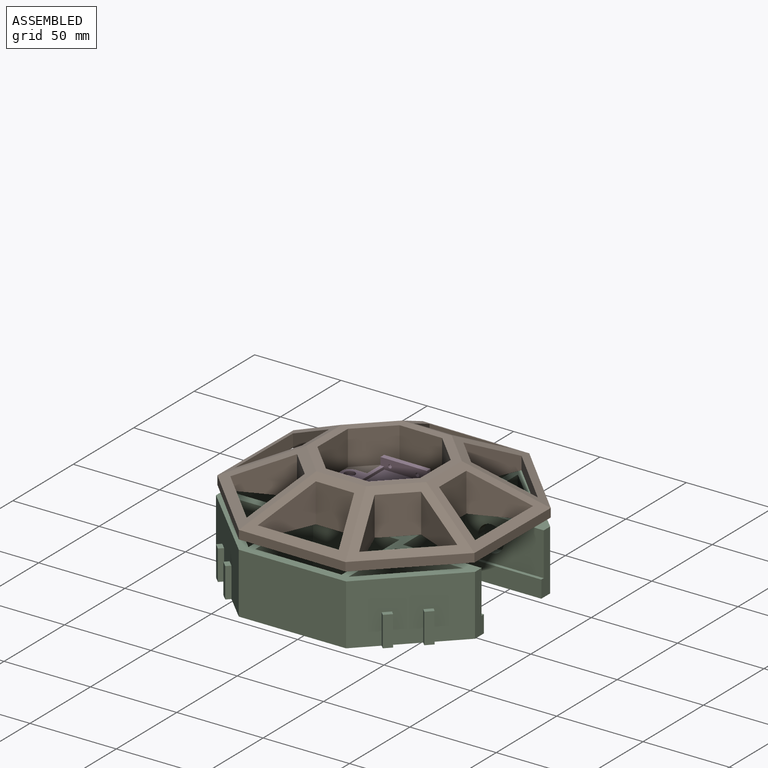
[diagram: assembled view]
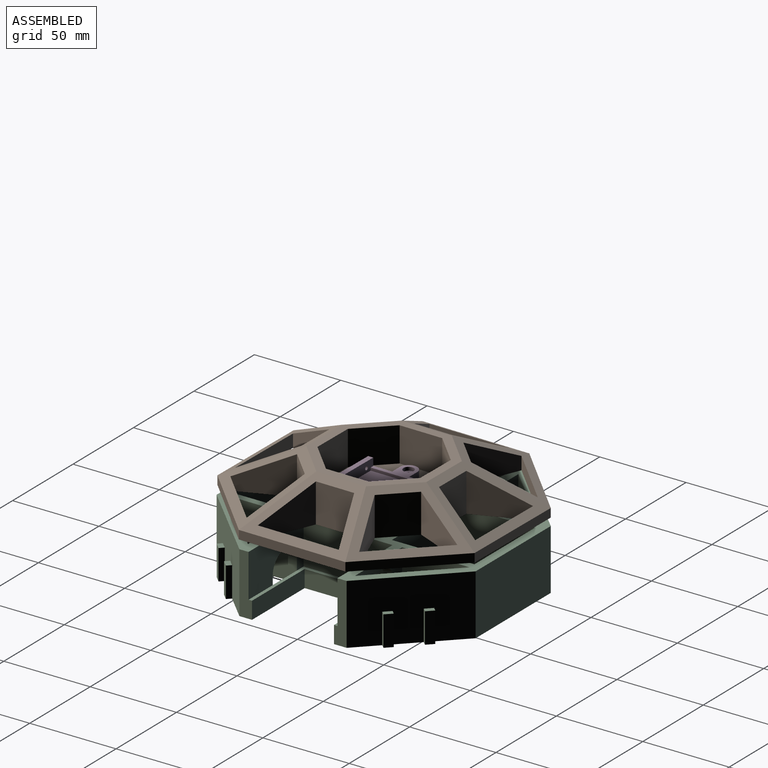
[diagram: assembled view, second angle]
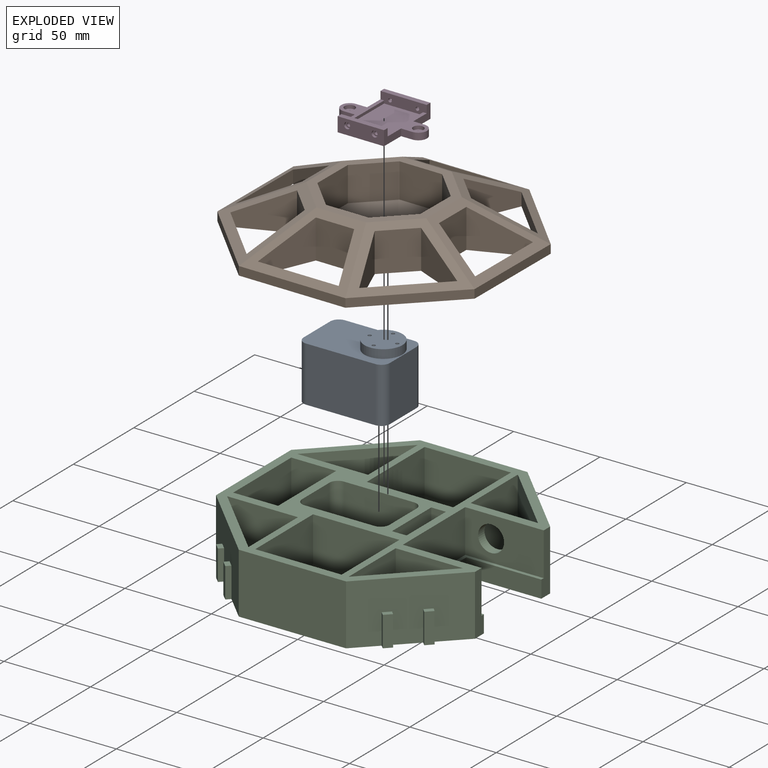
[diagram: exploded view]
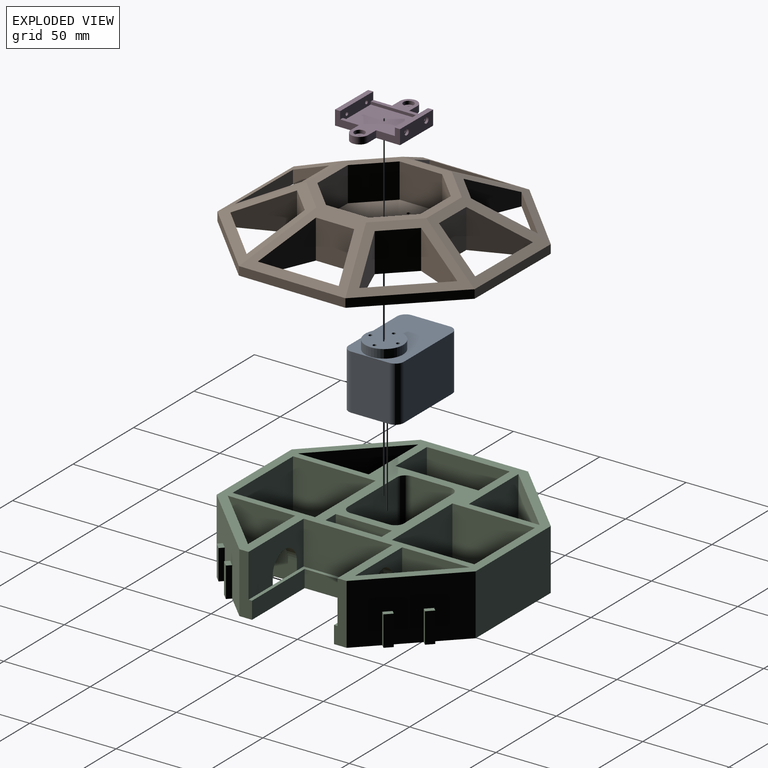
[diagram: exploded view, second angle]
ASSEMBLY  parts=4 mates=6
PART A: 20 faces, bbox 50x32x37 mm
  f0: plane 32x22mm, normal (1,0,0), area 704mm2, adj f4,f5,f6,f9
  f1: plane 40x32mm, normal (0,1,0), area 1280mm2, adj f4,f5,f6,f7
  f2: plane 32x22mm, normal (-1,0,0), area 704mm2, adj f4,f5,f7,f8
  f3: plane 40x32mm, normal (0,-1,0), area 1280mm2, adj f4,f5,f8,f9
  f4: plane 50x32mm, normal (0,0,1), area 1198.4mm2, adj f0,f1,f2,f3,f6,f7,f8,f9
  f5: plane 50x32mm, normal (0,0,-1), area 1578.5mm2, adj f0,f1,f2,f3,f6,f7,f8,f9
  f6: cylinder r=5mm len=32mm, axis (0,0,-1), area 251.3mm2, adj f0,f1,f4,f5
  f7: cylinder r=5mm len=32mm, axis (0,0,1), area 251.3mm2, adj f1,f2,f4,f5
  f8: cylinder r=5mm len=32mm, axis (0,0,-1), area 251.3mm2, adj f2,f3,f4,f5
  f9: cylinder r=5mm len=32mm, axis (0,0,1), area 251.3mm2, adj f0,f3,f4,f5
  f10: cylinder r=11mm len=22mm, axis (0,0,-1), area 345.6mm2, adj f4,f11
  f11: plane 22x22mm, normal (0,0,1), area 367.6mm2, adj f10,f12,f14,f16,f18
  f12: cylinder r=1mm len=5mm, axis (0,0,1), area 31.4mm2, adj f11,f13
  f13: plane 2x2mm, normal (0,0,1), area 3.1mm2, adj f12
  f14: cylinder r=1mm len=5mm, axis (0,0,1), area 31.4mm2, adj f11,f15
  f15: plane 2x2mm, normal (0,0,1), area 3.1mm2, adj f14
  f16: cylinder r=1mm len=5mm, axis (0,0,1), area 31.4mm2, adj f11,f17
  f17: plane 2x2mm, normal (0,0,1), area 3.1mm2, adj f16
  f18: cylinder r=1mm len=5mm, axis (0,0,1), area 31.4mm2, adj f11,f19
  f19: plane 2x2mm, normal (0,0,1), area 3.1mm2, adj f18
PART B: 74 faces, bbox 150x150x25 mm
  f0: plane 150x150mm, normal (0,0,-1), area 10150.5mm2, adj f2,f3,f4,f5,f6,f7,f8,f9
  f1: plane 60.5x60.5mm, normal (0.32,-0.32,0.89), area 872.5mm2, adj f8,f10,f16,f17,f31,f32,f33,f34
  f2: plane 43.93x43.93mm, normal (0.71,0.71,0), area 310.7mm2, adj f0,f3,f9,f14
  f3: plane 62.13x5mm, normal (0,1,0), area 310.7mm2, adj f0,f2,f4,f12
  f4: plane 43.93x43.93mm, normal (-0.71,0.71,0), area 310.7mm2, adj f0,f3,f5,f11
  f5: plane 62.13x5mm, normal (-1,0,0), area 310.7mm2, adj f0,f4,f6,f13
  f6: plane 43.93x43.93mm, normal (-0.71,-0.71,0), area 310.7mm2, adj f0,f5,f7,f15
  f7: plane 62.13x5mm, normal (0,-1,0), area 310.7mm2, adj f0,f6,f8,f17
  f8: plane 43.93x43.93mm, normal (0.71,-0.71,0), area 310.7mm2, adj f0,f1,f7,f9
  f9: plane 62.13x5mm, normal (1,0,0), area 310.7mm2, adj f0,f2,f8,f16
  f10: plane 70x70mm, normal (0,0,1), area 1077mm2, adj f1,f11,f12,f13,f14,f15,f16,f17
  f11: plane 60.5x60.5mm, normal (-0.32,0.32,0.89), area 872.5mm2, adj f4,f10,f12,f13,f59,f60,f61,f62
  f12: plane 62.13x40mm, normal (0,0.45,0.89), area 872.5mm2, adj f3,f10,f11,f14,f55,f56,f57,f58
  f13: plane 62.13x40mm, normal (-0.45,0,0.89), area 872.5mm2, adj f5,f10,f11,f15,f51,f52,f53,f54
  f14: plane 60.5x60.5mm, normal (0.32,0.32,0.89), area 872.5mm2, adj f2,f10,f12,f16,f47,f48,f49,f50
  f15: plane 60.5x60.5mm, normal (-0.32,-0.32,0.89), area 872.5mm2, adj f6,f10,f13,f17,f43,f44,f45,f46
  f16: plane 62.13x40mm, normal (0.45,0,0.89), area 872.5mm2, adj f1,f9,f10,f14,f39,f40,f41,f42
  f17: plane 62.13x40mm, normal (0,-0.45,0.89), area 872.5mm2, adj f1,f7,f10,f15,f35,f36,f37,f38
  f18: plane 24.85x20mm, normal (0,-1,0), area 497.1mm2, adj f10,f19,f25,f26
  f19: plane 20x17.57mm, normal (0.71,-0.71,0), area 497.1mm2, adj f10,f18,f20,f26
  f20: plane 24.85x20mm, normal (1,0,0), area 497.1mm2, adj f10,f19,f21,f26
  f21: plane 20x17.57mm, normal (0.71,0.71,0), area 497.1mm2, adj f10,f20,f22,f26
  f22: plane 24.85x20mm, normal (0,1,0), area 497.1mm2, adj f10,f21,f23,f26
  f23: plane 20x17.57mm, normal (-0.71,0.71,0), area 497.1mm2, adj f10,f22,f24,f26
  f24: plane 24.85x20mm, normal (-1,0,0), area 497.1mm2, adj f10,f23,f25,f26
  f25: plane 20x17.57mm, normal (-0.71,-0.71,0), area 497.1mm2, adj f10,f18,f24,f26
  f26: plane 60x60mm, normal (0,0,1), area 2804.8mm2, adj f18,f19,f20,f21,f22,f23,f24,f25
  f27: cylinder r=1mm len=3.6mm, axis (0,0,1), area 22.6mm2, adj f0,f70
  f28: cylinder r=1mm len=3.6mm, axis (0,0,1), area 22.6mm2, adj f0,f68
  f29: cylinder r=1mm len=3.6mm, axis (0,0,1), area 22.6mm2, adj f0,f66
  f30: cylinder r=1mm len=3.6mm, axis (0,0,1), area 22.6mm2, adj f0,f64
  f31: plane 30x22.5mm, normal (-0.38,-0.92,0), area 487.1mm2, adj f0,f1,f32,f34
  f32: plane 33.35x33.35mm, normal (-0.71,0.71,0), area 353.7mm2, adj f0,f1,f31,f33
  f33: plane 30x22.5mm, normal (0.92,0.38,0), area 487.1mm2, adj f0,f1,f32,f34
  f34: plane 22.5x15.78mm, normal (0.71,-0.71,0), area 502mm2, adj f0,f1,f31,f33
  f35: plane 30x22.5mm, normal (-0.92,-0.38,0), area 487.1mm2, adj f0,f17,f36,f38
  f36: plane 47.17x7.5mm, normal (0,1,0), area 353.7mm2, adj f0,f17,f35,f37
  f37: plane 30x22.5mm, normal (0.92,-0.38,0), area 487.1mm2, adj f0,f17,f36,f38
  f38: plane 22.5x22.31mm, normal (0,-1,0), area 502mm2, adj f0,f17,f35,f37
  f39: plane 30x22.5mm, normal (0.38,0.92,0), area 487.1mm2, adj f0,f16,f40,f42
  f40: plane 22.5x22.31mm, normal (1,0,0), area 502mm2, adj f0,f16,f39,f41
  f41: plane 30x22.5mm, normal (0.38,-0.92,0), area 487.1mm2, adj f0,f16,f40,f42
  f42: plane 47.17x7.5mm, normal (-1,0,0), area 353.7mm2, adj f0,f16,f39,f41
  f43: plane 22.5x15.78mm, normal (-0.71,-0.71,0), area 502mm2, adj f0,f15,f44,f46
  f44: plane 30x22.5mm, normal (-0.92,0.38,0), area 487.1mm2, adj f0,f15,f43,f45
  f45: plane 33.35x33.35mm, normal (0.71,0.71,0), area 353.7mm2, adj f0,f15,f44,f46
  f46: plane 30x22.5mm, normal (0.38,-0.92,0), area 487.1mm2, adj f0,f15,f43,f45
  f47: plane 30x22.5mm, normal (-0.38,0.92,0), area 487.1mm2, adj f0,f14,f48,f50
  f48: plane 22.5x15.78mm, normal (0.71,0.71,0), area 502mm2, adj f0,f14,f47,f49
  f49: plane 30x22.5mm, normal (0.92,-0.38,0), area 487.1mm2, adj f0,f14,f48,f50
  f50: plane 33.35x33.35mm, normal (-0.71,-0.71,0), area 353.7mm2, adj f0,f14,f47,f49
  f51: plane 22.5x22.31mm, normal (-1,0,0), area 502mm2, adj f0,f13,f52,f54
  f52: plane 30x22.5mm, normal (-0.38,0.92,0), area 487.1mm2, adj f0,f13,f51,f53
  f53: plane 47.17x7.5mm, normal (1,0,0), area 353.7mm2, adj f0,f13,f52,f54
  f54: plane 30x22.5mm, normal (-0.38,-0.92,0), area 487.1mm2, adj f0,f13,f51,f53
  f55: plane 30x22.5mm, normal (-0.92,0.38,0), area 487.1mm2, adj f0,f12,f56,f58
  f56: plane 22.5x22.31mm, normal (0,1,0), area 502mm2, adj f0,f12,f55,f57
  f57: plane 30x22.5mm, normal (0.92,0.38,0), area 487.1mm2, adj f0,f12,f56,f58
  f58: plane 47.17x7.5mm, normal (0,-1,0), area 353.7mm2, adj f0,f12,f55,f57
  f59: plane 30x22.5mm, normal (-0.92,-0.38,0), area 487.1mm2, adj f0,f11,f60,f62
  f60: plane 22.5x15.78mm, normal (-0.71,0.71,0), area 502mm2, adj f0,f11,f59,f61
  f61: plane 30x22.5mm, normal (0.38,0.92,0), area 487.1mm2, adj f0,f11,f60,f62
  f62: plane 33.35x33.35mm, normal (0.71,-0.71,0), area 353.7mm2, adj f0,f11,f59,f61
  f63: cylinder r=1.75mm len=3.5mm, axis (0,0,1), area 15.4mm2, adj f26,f64
  f64: plane 3.5x3.5mm, normal (0,0,1), area 6.5mm2, adj f30,f63
  f65: cylinder r=1.75mm len=3.5mm, axis (0,0,1), area 15.4mm2, adj f26,f66
  f66: plane 3.5x3.5mm, normal (0,0,1), area 6.5mm2, adj f29,f65
  f67: cylinder r=1.75mm len=3.5mm, axis (0,0,1), area 15.4mm2, adj f26,f68
  f68: plane 3.5x3.5mm, normal (0,0,1), area 6.5mm2, adj f28,f67
  f69: cylinder r=1.75mm len=3.5mm, axis (0,0,1), area 15.4mm2, adj f26,f70
  f70: plane 3.5x3.5mm, normal (0,0,1), area 6.5mm2, adj f27,f69
  f71: cylinder r=1mm len=5mm, axis (0,0,1), area 31.4mm2, adj f0,f26
  f72: cylinder r=1mm len=5mm, axis (0,0,1), area 31.4mm2, adj f0,f26
  f73: cylinder r=6.5mm len=13mm, axis (0,0,1), area 204.2mm2, adj f0,f26
PART C: 138 faces, bbox 150x150x35 mm
  f0: plane 41.01x41.01mm, normal (0.71,0.71,0), area 1810.9mm2, adj f6,f12,f24,f25,f130,f132,f133,f134
  f1: plane 41.01x41.01mm, normal (0.71,-0.71,0), area 1810.9mm2, adj f6,f12,f38,f39,f114,f116,f117,f118
  f2: plane 39.01x39.01mm, normal (-0.71,-0.71,0), area 1711.9mm2, adj f6,f12,f41,f42,f98,f100,f101,f102
  f3: plane 39.01x39.01mm, normal (-0.71,0.71,0), area 1711.9mm2, adj f6,f8,f12,f40,f74,f76,f77,f78
  f4: plane 35x7.32mm, normal (1,0,0), area 206.1mm2, adj f5,f6,f7,f12,f19,f67
  f5: plane 51.5x45.5mm, normal (0,0,1), area 277mm2, adj f4,f7,f9,f10,f11,f66,f67,f68
  f6: plane 150x150mm, normal (0,0,-1), area 6239.5mm2, adj f0,f1,f2,f3,f4,f8,f11,f13
  f7: plane 45.5x25mm, normal (0,1,0), area 880.4mm2, adj f4,f5,f10,f12,f69,f70,f71
  f8: plane 39.01x35mm, normal (0,-1,0), area 908.1mm2, adj f3,f6,f12,f40,f69,f70,f71
  f9: plane 45.5x25mm, normal (0,-1,0), area 960.8mm2, adj f5,f10,f11,f12,f73
  f10: plane 51.5x25mm, normal (1,0,0), area 1287.5mm2, adj f5,f7,f9,f12
  f11: plane 35x7.32mm, normal (1,0,0), area 206.1mm2, adj f5,f6,f9,f12,f13,f66
  f12: plane 150x150mm, normal (0,0,1), area 5176.5mm2, adj f0,f1,f2,f3,f4,f7,f8,f9
  f13: plane 43.93x43.93mm, normal (0.71,0.71,0), area 1999.6mm2, adj f6,f11,f12,f14,f91,f92,f93,f94
  f14: plane 62.13x35mm, normal (0,1,0), area 2174.6mm2, adj f6,f12,f13,f15
  f15: plane 43.93x43.93mm, normal (-0.71,0.71,0), area 1999.6mm2, adj f6,f12,f14,f16,f107,f108,f109,f110
  f16: plane 62.13x35mm, normal (-1,0,0), area 2174.6mm2, adj f6,f12,f15,f17
  f17: plane 43.93x43.93mm, normal (-0.71,-0.71,0), area 1999.6mm2, adj f6,f12,f16,f18,f123,f124,f125,f126
  f18: plane 62.13x35mm, normal (0,-1,0), area 2174.6mm2, adj f6,f12,f17,f19
  f19: plane 43.93x43.93mm, normal (0.71,-0.71,0), area 1999.6mm2, adj f4,f6,f12,f18,f82,f84,f85,f86
  f20: plane 32x22.5mm, normal (1,0,0), area 720mm2, adj f12,f61,f62,f65
  f21: plane 40.5x32mm, normal (0,-1,0), area 1296mm2, adj f12,f61,f62,f63
  f22: plane 32x22.5mm, normal (-1,0,0), area 720mm2, adj f12,f61,f63,f64
  f23: plane 40.5x32mm, normal (0,1,0), area 1296mm2, adj f12,f61,f64,f65
  f24: plane 41.01x35mm, normal (-1,0,0), area 1435.2mm2, adj f0,f6,f12,f25
  f25: plane 41.01x35mm, normal (0,-1,0), area 1435.2mm2, adj f0,f6,f12,f24
  f26: plane 47.75x35mm, normal (1,0,0), area 1671.3mm2, adj f6,f12,f27,f29
  f27: plane 49.98x35mm, normal (0,-1,0), area 1749.3mm2, adj f6,f12,f26,f28
  f28: plane 47.75x35mm, normal (-1,0,0), area 1671.3mm2, adj f6,f12,f27,f29
  f29: plane 49.99x35mm, normal (0,1,0), area 1749.6mm2, adj f6,f12,f26,f28
  f30: plane 49.99x35mm, normal (0,1,0), area 1749.6mm2, adj f6,f12,f31,f33
  f31: plane 47.75x35mm, normal (1,0,0), area 1671.3mm2, adj f6,f12,f30,f32
  f32: plane 49.99x35mm, normal (0,-1,0), area 1749.6mm2, adj f6,f12,f31,f33
  f33: plane 47.75x35mm, normal (-1,0,0), area 1671.3mm2, adj f6,f12,f30,f32
  f34: plane 35x8.48mm, normal (0,-1,0), area 297mm2, adj f6,f12,f35,f37
  f35: plane 35x32.5mm, normal (-1,0,0), area 1137.5mm2, adj f6,f12,f34,f36
  f36: plane 35x8.48mm, normal (0,1,0), area 297mm2, adj f6,f12,f35,f37
  f37: plane 35x32.5mm, normal (1,0,0), area 1137.5mm2, adj f6,f12,f34,f36
  f38: plane 41.01x35mm, normal (-1,0,0), area 1435.2mm2, adj f1,f6,f12,f39
  f39: plane 41.01x35mm, normal (0,1,0), area 1435.2mm2, adj f1,f6,f12,f38
  f40: plane 39.01x35mm, normal (1,0,0), area 1365.2mm2, adj f3,f6,f8,f12
  f41: plane 39.01x35mm, normal (0,1,0), area 1188.5mm2, adj f2,f6,f12,f42,f73
  f42: plane 39.01x35mm, normal (1,0,0), area 1365.2mm2, adj f2,f6,f12,f41
  f43: plane 47.99x35mm, normal (1,0,0), area 1679.6mm2, adj f6,f12,f44,f46
  f44: plane 35x26mm, normal (0,-1,0), area 910mm2, adj f6,f12,f43,f45
  f45: plane 47.99x35mm, normal (-1,0,0), area 1679.6mm2, adj f6,f12,f44,f46
  f46: plane 35x26mm, normal (0,1,0), area 910mm2, adj f6,f12,f43,f45
  f47: plane 43x3mm, normal (0,1,0), area 129mm2, adj f6,f48,f51,f61
  f48: plane 22.5x3mm, normal (-1,0,0), area 67.5mm2, adj f6,f47,f49,f61
  f49: plane 43x3mm, normal (0,-1,0), area 129mm2, adj f6,f48,f51,f61
  f50: cylinder r=1mm len=3mm, axis (0,0,-1), area 18.8mm2, adj f6,f61
  f51: plane 22.5x3mm, normal (1,0,0), area 67.5mm2, adj f6,f47,f49,f61
  f52: cylinder r=1mm len=3mm, axis (0,0,-1), area 18.8mm2, adj f6,f61
  f53: cylinder r=1mm len=3mm, axis (0,0,-1), area 18.8mm2, adj f6,f61
  f54: cylinder r=1mm len=3mm, axis (0,0,-1), area 18.8mm2, adj f6,f61
  f55: cylinder r=1mm len=3mm, axis (0,0,-1), area 18.8mm2, adj f6,f61
  f56: cylinder r=1mm len=3mm, axis (0,0,-1), area 18.8mm2, adj f6,f61
  f57: cylinder r=1mm len=3mm, axis (0,0,-1), area 18.8mm2, adj f6,f61
  f58: cylinder r=1mm len=3mm, axis (0,0,-1), area 18.8mm2, adj f6,f61
  f59: cylinder r=1mm len=3mm, axis (0,0,-1), area 18.8mm2, adj f6,f61
  f60: cylinder r=1mm len=3mm, axis (0,0,-1), area 18.8mm2, adj f6,f61
  f61: plane 50.5x32.5mm, normal (0,0,1), area 620.9mm2, adj f20,f21,f22,f23,f47,f48,f49,f50
  f62: cylinder r=5mm len=32mm, axis (0,0,1), area 251.3mm2, adj f12,f20,f21,f61
  f63: cylinder r=5mm len=32mm, axis (0,0,1), area 251.3mm2, adj f12,f21,f22,f61
  f64: cylinder r=5mm len=32mm, axis (0,0,-1), area 251.3mm2, adj f12,f22,f23,f61
  f65: cylinder r=5mm len=32mm, axis (0,0,-1), area 251.3mm2, adj f12,f20,f23,f61
  f66: plane 43.5x10mm, normal (0,-1,0), area 435mm2, adj f5,f6,f11,f68
  f67: plane 43.5x10mm, normal (0,1,0), area 435mm2, adj f4,f5,f6,f68
  f68: plane 47.5x10mm, normal (1,0,0), area 475mm2, adj f5,f6,f66,f67
  f69: plane 15x5.25mm, normal (1,0,0), area 78.7mm2, adj f6,f7,f8,f71,f72
  f70: plane 15x5.25mm, normal (-1,0,0), area 78.7mm2, adj f6,f7,f8,f71,f72
  f71: cylinder r=10mm len=20mm, axis (0,-1,0), area 164.8mm2, adj f7,f8,f69,f70
  f72: plane 20x10mm, normal (0,-1,0), area 200mm2, adj f5,f6,f69,f70
  f73: cylinder r=7.5mm len=15mm, axis (0,-1,0), area 247.2mm2, adj f9,f41
  f74: plane 17.5x2.12mm, normal (0.71,0.71,0), area 52.5mm2, adj f3,f6,f75,f77
  f75: plane 17.5x3.54mm, normal (-0.71,0.71,0), area 87.5mm2, adj f6,f74,f76,f77
  f76: plane 17.5x2.12mm, normal (-0.71,-0.71,0), area 52.5mm2, adj f3,f6,f75,f77
  f77: plane 5.66x5.66mm, normal (0,0,1), area 15mm2, adj f3,f74,f75,f76
  f78: plane 17.5x2.12mm, normal (-0.71,-0.71,0), area 52.5mm2, adj f3,f6,f80,f81
  f79: plane 17.5x2.12mm, normal (0.71,0.71,0), area 52.5mm2, adj f3,f6,f80,f81
  f80: plane 17.5x5.3mm, normal (-0.71,0.71,0), area 131.2mm2, adj f6,f78,f79,f81
  f81: plane 7.42x7.42mm, normal (0,0,1), area 22.5mm2, adj f3,f78,f79,f80
  f82: plane 17.5x2.12mm, normal (-0.71,-0.71,0), area 52.5mm2, adj f6,f19,f83,f85
  f83: plane 17.5x3.54mm, normal (0.71,-0.71,0), area 87.5mm2, adj f6,f82,f84,f85
  f84: plane 17.5x2.12mm, normal (0.71,0.71,0), area 52.5mm2, adj f6,f19,f83,f85
  f85: plane 5.66x5.66mm, normal (0,0,1), area 15mm2, adj f19,f82,f83,f84
  f86: plane 17.5x2.12mm, normal (0.71,0.71,0), area 52.5mm2, adj f6,f19,f88,f89
  f87: plane 17.5x2.12mm, normal (-0.71,-0.71,0), area 52.5mm2, adj f6,f19,f88,f89
  f88: plane 17.5x3.54mm, normal (0.71,-0.71,0), area 87.5mm2, adj f6,f86,f87,f89
  f89: plane 5.66x5.66mm, normal (0,0,1), area 15mm2, adj f19,f86,f87,f88
  f90: plane 17.5x3.54mm, normal (0.71,0.71,0), area 87.5mm2, adj f6,f91,f92,f93
  f91: plane 17.5x2.12mm, normal (-0.71,0.71,0), area 52.5mm2, adj f6,f13,f90,f93
  f92: plane 17.5x2.12mm, normal (0.71,-0.71,0), area 52.5mm2, adj f6,f13,f90,f93
  f93: plane 5.66x5.66mm, normal (0,0,1), area 15mm2, adj f13,f90,f91,f92
  f94: plane 17.5x2.12mm, normal (0.71,-0.71,0), area 52.5mm2, adj f6,f13,f95,f97
  f95: plane 17.5x3.54mm, normal (0.71,0.71,0), area 87.5mm2, adj f6,f94,f96,f97
  f96: plane 17.5x2.12mm, normal (-0.71,0.71,0), area 52.5mm2, adj f6,f13,f95,f97
  f97: plane 5.66x5.66mm, normal (0,0,1), area 15mm2, adj f13,f94,f95,f96
  f98: plane 17.5x2.12mm, normal (-0.71,0.71,0), area 52.5mm2, adj f2,f6,f99,f101
  f99: plane 17.5x3.54mm, normal (-0.71,-0.71,0), area 87.5mm2, adj f6,f98,f100,f101
  f100: plane 17.5x2.12mm, normal (0.71,-0.71,0), area 52.5mm2, adj f2,f6,f99,f101
  f101: plane 5.66x5.66mm, normal (0,0,1), area 15mm2, adj f2,f98,f99,f100
  f102: plane 17.5x2.12mm, normal (-0.71,0.71,0), area 52.5mm2, adj f2,f6,f103,f105
  f103: plane 17.5x5.3mm, normal (-0.71,-0.71,0), area 131.2mm2, adj f6,f102,f104,f105
  f104: plane 17.5x2.12mm, normal (0.71,-0.71,0), area 52.5mm2, adj f2,f6,f103,f105
  f105: plane 7.42x7.42mm, normal (0,0,1), area 22.5mm2, adj f2,f102,f103,f104
  f106: plane 17.5x3.54mm, normal (-0.71,0.71,0), area 87.5mm2, adj f6,f107,f108,f109
  f107: plane 17.5x2.12mm, normal (-0.71,-0.71,0), area 52.5mm2, adj f6,f15,f106,f109
  f108: plane 17.5x2.12mm, normal (0.71,0.71,0), area 52.5mm2, adj f6,f15,f106,f109
  f109: plane 5.66x5.66mm, normal (0,0,1), area 15mm2, adj f15,f106,f107,f108
  f110: plane 17.5x2.12mm, normal (0.71,0.71,0), area 52.5mm2, adj f6,f15,f111,f113
  f111: plane 17.5x3.54mm, normal (-0.71,0.71,0), area 87.5mm2, adj f6,f110,f112,f113
  f112: plane 17.5x2.12mm, normal (-0.71,-0.71,0), area 52.5mm2, adj f6,f15,f111,f113
  f113: plane 5.66x5.66mm, normal (0,0,1), area 15mm2, adj f15,f110,f111,f112
  f114: plane 17.5x2.12mm, normal (-0.71,-0.71,0), area 52.5mm2, adj f1,f6,f115,f117
  f115: plane 17.5x3.54mm, normal (0.71,-0.71,0), area 87.5mm2, adj f6,f114,f116,f117
  f116: plane 17.5x2.12mm, normal (0.71,0.71,0), area 52.5mm2, adj f1,f6,f115,f117
  f117: plane 5.66x5.66mm, normal (0,0,1), area 15mm2, adj f1,f114,f115,f116
  f118: plane 17.5x2.12mm, normal (-0.71,-0.71,0), area 52.5mm2, adj f1,f6,f119,f121
  f119: plane 17.5x5.3mm, normal (0.71,-0.71,0), area 131.2mm2, adj f6,f118,f120,f121
  f120: plane 17.5x2.12mm, normal (0.71,0.71,0), area 52.5mm2, adj f1,f6,f119,f121
  f121: plane 7.42x7.42mm, normal (0,0,1), area 22.5mm2, adj f1,f118,f119,f120
  f122: plane 17.5x3.54mm, normal (-0.71,-0.71,0), area 87.5mm2, adj f6,f123,f124,f125
  f123: plane 17.5x2.12mm, normal (0.71,-0.71,0), area 52.5mm2, adj f6,f17,f122,f125
  f124: plane 17.5x2.12mm, normal (-0.71,0.71,0), area 52.5mm2, adj f6,f17,f122,f125
  f125: plane 5.66x5.66mm, normal (0,0,1), area 15mm2, adj f17,f122,f123,f124
  f126: plane 17.5x2.12mm, normal (-0.71,0.71,0), area 52.5mm2, adj f6,f17,f127,f129
  f127: plane 17.5x3.54mm, normal (-0.71,-0.71,0), area 87.5mm2, adj f6,f126,f128,f129
  f128: plane 17.5x2.12mm, normal (0.71,-0.71,0), area 52.5mm2, adj f6,f17,f127,f129
  f129: plane 5.66x5.66mm, normal (0,0,1), area 15mm2, adj f17,f126,f127,f128
  f130: plane 17.5x2.12mm, normal (0.71,-0.71,0), area 52.5mm2, adj f0,f6,f131,f133
  f131: plane 17.5x3.54mm, normal (0.71,0.71,0), area 87.5mm2, adj f6,f130,f132,f133
  f132: plane 17.5x2.12mm, normal (-0.71,0.71,0), area 52.5mm2, adj f0,f6,f131,f133
  f133: plane 5.66x5.66mm, normal (0,0,1), area 15mm2, adj f0,f130,f131,f132
  f134: plane 17.5x2.12mm, normal (0.71,-0.71,0), area 52.5mm2, adj f0,f6,f135,f137
  f135: plane 17.5x5.3mm, normal (0.71,0.71,0), area 131.2mm2, adj f6,f134,f136,f137
  f136: plane 17.5x2.12mm, normal (-0.71,0.71,0), area 52.5mm2, adj f0,f6,f135,f137
  f137: plane 7.42x7.42mm, normal (0,0,1), area 22.5mm2, adj f0,f134,f135,f136
PART D: 40 faces, bbox 37.9x50x8.4 mm
  f0: plane 31.9x13.65mm, normal (0,0,1), area 144.6mm2, adj f2,f3,f4,f5,f6,f15,f17,f19
  f1: plane 31.9x13.65mm, normal (0,0,1), area 144.6mm2, adj f8,f9,f10,f11,f12,f15,f17,f20
  f2: plane 13.95x8.4mm, normal (0,-1,0), area 69mm2, adj f0,f3,f13,f14,f15,f16
  f3: plane 6.5x4mm, normal (-1,0,0), area 26mm2, adj f0,f2,f4,f14
  f4: cylinder r=5mm len=10mm, axis (0,0,-1), area 62.8mm2, adj f0,f3,f5,f14
  f5: plane 6.5x4mm, normal (1,0,0), area 26mm2, adj f0,f4,f6,f14
  f6: plane 13.95x8.4mm, normal (0,-1,0), area 69mm2, adj f0,f5,f7,f14,f17,f18
  f7: plane 27x8.4mm, normal (1,0,0), area 207mm2, adj f6,f8,f14,f18,f24,f26
  f8: plane 13.95x8.4mm, normal (0,1,0), area 69mm2, adj f1,f7,f9,f14,f17,f18
  f9: plane 6.5x4mm, normal (1,0,0), area 26mm2, adj f1,f8,f10,f14
  f10: cylinder r=5mm len=10mm, axis (0,0,-1), area 62.8mm2, adj f1,f9,f11,f14
  f11: plane 6.5x4mm, normal (-1,0,0), area 26mm2, adj f1,f10,f12,f14
  f12: plane 13.95x8.4mm, normal (0,1,0), area 69mm2, adj f1,f11,f13,f14,f15,f16
  f13: plane 27x8.4mm, normal (-1,0,0), area 207mm2, adj f2,f12,f14,f16,f30,f32
  f14: plane 50x37.9mm, normal (0,0,-1), area 1217.7mm2, adj f2,f3,f4,f5,f6,f7,f8,f9
  f15: plane 27x6mm, normal (1,0,0), area 148.2mm2, adj f0,f1,f2,f12,f16,f19,f20,f21
  f16: plane 27x3mm, normal (0,0,1), area 81mm2, adj f2,f12,f13,f15
  f17: plane 27x6mm, normal (-1,0,0), area 148.2mm2, adj f0,f1,f6,f8,f18,f19,f20,f21
  f18: plane 27x3mm, normal (0,0,1), area 81mm2, adj f6,f7,f8,f17
  f19: plane 31.9x1.6mm, normal (0,1,0), area 51mm2, adj f0,f15,f17,f21
  f20: plane 31.9x1.6mm, normal (0,-1,0), area 51mm2, adj f1,f15,f17,f21
  f21: plane 31.9x22.7mm, normal (0,0,1), area 724.1mm2, adj f15,f17,f19,f20
  f22: cylinder r=1.05mm len=2.1mm, axis (1,0,0), area 10.6mm2, adj f17,f27
  f23: cylinder r=1.05mm len=2.1mm, axis (1,0,0), area 10.6mm2, adj f17,f25
  f24: cylinder r=1.78mm len=3.55mm, axis (1,0,0), area 15.6mm2, adj f7,f25
  f25: plane 3.55x3.55mm, normal (1,0,0), area 6.4mm2, adj f23,f24
  f26: cylinder r=1.78mm len=3.55mm, axis (1,0,0), area 15.6mm2, adj f7,f27
  f27: plane 3.55x3.55mm, normal (1,0,0), area 6.4mm2, adj f22,f26
  f28: cylinder r=1.05mm len=2.1mm, axis (-1,0,0), area 10.6mm2, adj f15,f33
  f29: cylinder r=1.05mm len=2.1mm, axis (-1,0,0), area 10.6mm2, adj f15,f31
  f30: cylinder r=1.78mm len=3.55mm, axis (-1,0,0), area 15.6mm2, adj f13,f31
  f31: plane 3.55x3.55mm, normal (-1,0,0), area 6.4mm2, adj f29,f30
  f32: cylinder r=1.78mm len=3.55mm, axis (-1,0,0), area 15.6mm2, adj f13,f33
  f33: plane 3.55x3.55mm, normal (-1,0,0), area 6.4mm2, adj f28,f32
  f34: cylinder r=1.5mm len=3mm, axis (0,0,1), area 18.8mm2, adj f14,f39
  f35: cylinder r=1.5mm len=3mm, axis (0,0,1), area 18.8mm2, adj f14,f37
  f36: cylinder r=3mm len=6mm, axis (0,0,1), area 37.7mm2, adj f1,f37
  f37: plane 6x6mm, normal (0,0,1), area 21.2mm2, adj f35,f36
  f38: cylinder r=3mm len=6mm, axis (0,0,1), area 37.7mm2, adj f0,f39
  f39: plane 6x6mm, normal (0,0,1), area 21.2mm2, adj f34,f38
PLACE A t=(-63.84,0,-30.03)mm
PLACE B rot(axis=(0,0,-1),90.6deg) t=(-50.08,0.16,6.97)mm
PLACE C t=(-50.34,-0.25,-33.03)mm fixed
PLACE D rot(axis=(0,0,-1),90.6deg) t=(-52.64,100.16,11.97)mm
MATE revolute B.f0 <-> A.f10  axis (0,0,-1) through (-50.34,0,6.97)mm
MATE planar A.f5 <-> C.f61  axis (0,0,-1) through (-63.84,0,-30.03)mm
MATE cylindrical B.f71 <-> D.f4  axis (0,0,1) through (-70.07,0.36,11.97)mm
MATE planar A.f0 <-> C.f22  axis (1,0,0) through (-38.84,0,-14.03)mm
MATE planar A.f1 <-> C.f21  axis (0,1,0) through (-63.84,16,-14.03)mm
MATE cylindrical D.f10 <-> B.f72  axis (0,0,-1) through (-30.08,-0.04,11.97)mm
